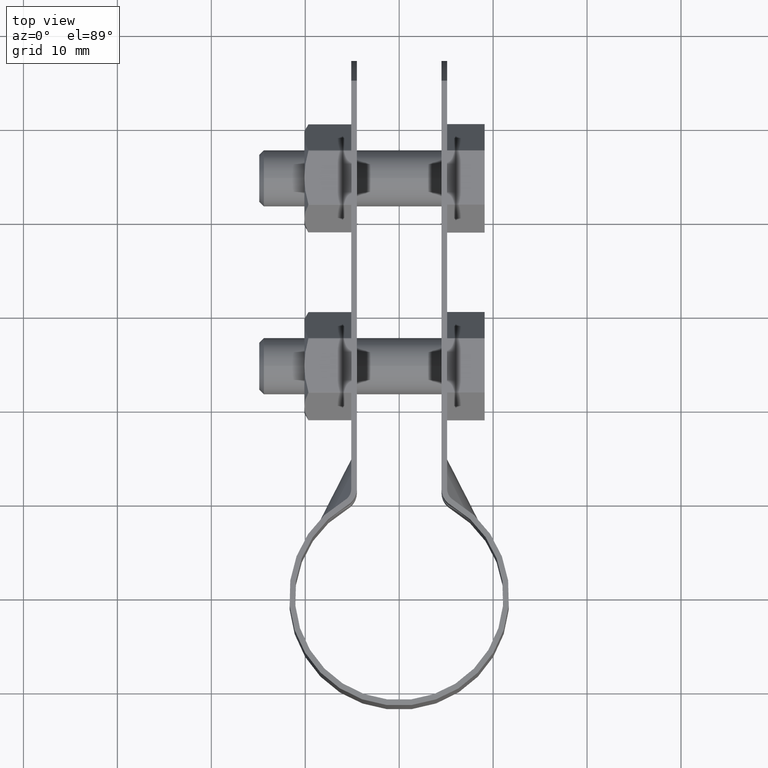
[diagram: clean part render]
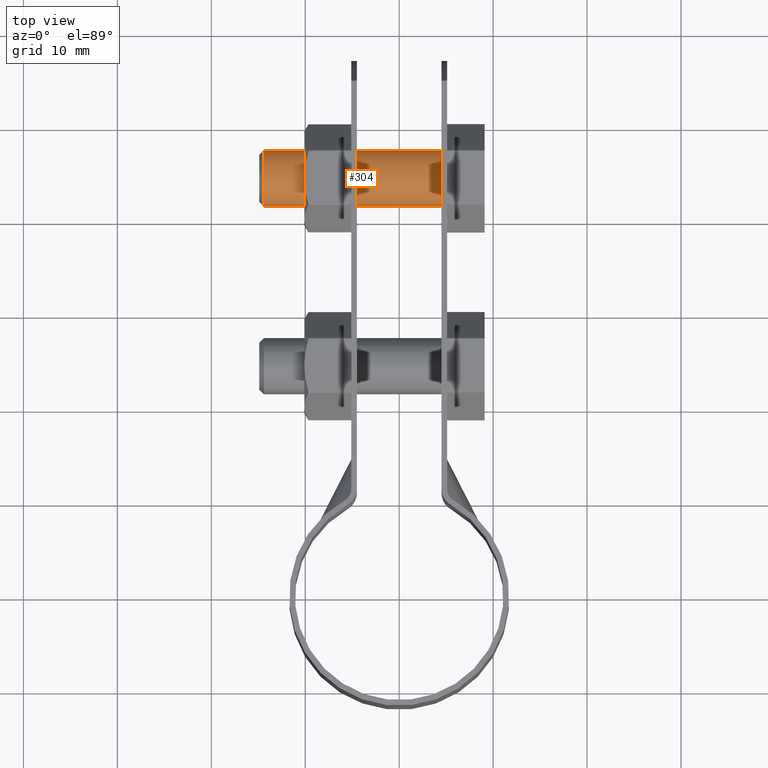
[diagram: same view with one face highlighted and labeled with its STEP entity id]
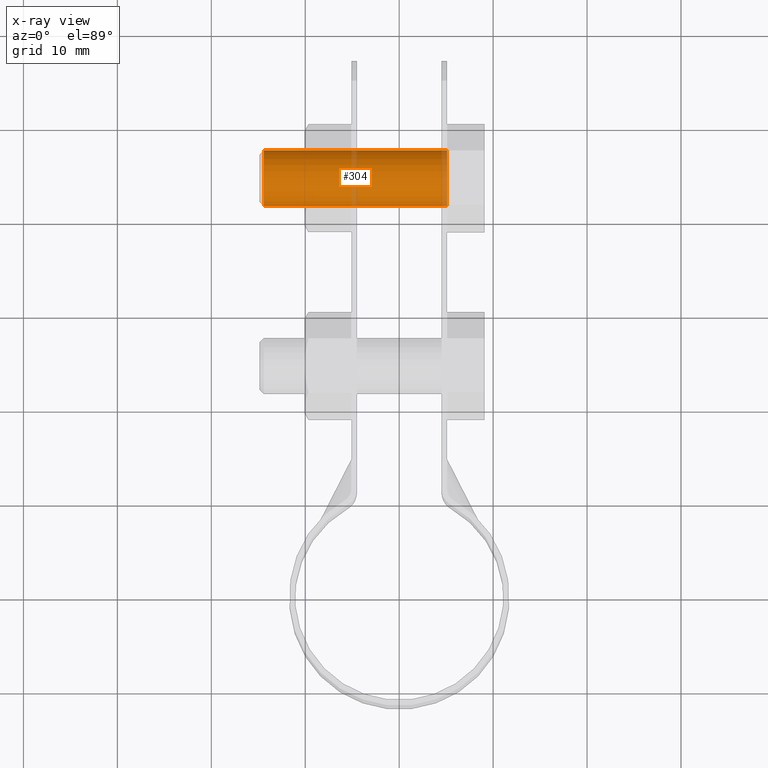
[diagram: x-ray of the same camera — body ghosted, the highlighted face saturated]
A machine part, top view. The second image highlights one B-rep face of the part: STEP entity #304.
The next image is the same camera in x-ray: the body ghosted, the highlighted face saturated — about 6% of this face is hidden behind the body in this view.
In plain terms, the highlighted cylindrical surface (bore or boss wall) has radius 3 mm, axis along (1, -0, 0).
Its self-contained STEP definition (entity closure, byte-faithful):
#304 = ADVANCED_FACE( '', ( #457, #458 ), #459, .T. );
#457 = FACE_OUTER_BOUND( '', #689, .T. );
#458 = FACE_OUTER_BOUND( '', #690, .T. );
#459 = CYLINDRICAL_SURFACE( '', #691, 3.00000000000000 );
#689 = EDGE_LOOP( '', ( #1144 ) );
#690 = EDGE_LOOP( '', ( #1145 ) );
#691 = AXIS2_PLACEMENT_3D( '', #1146, #1147, #1148 );
#1144 = ORIENTED_EDGE( '', *, *, #1720, .T. );
#1145 = ORIENTED_EDGE( '', *, *, #1714, .F. );
#1146 = CARTESIAN_POINT( '', ( 13.5487843911358, 44.6578590263894, -8.67361737988404E-016 ) );
#1147 = DIRECTION( '', ( 1.00000000000000, -6.06692130572647E-017, 0.000000000000000 ) );
#1148 = DIRECTION( '', ( 0.000000000000000, 0.000000000000000, 1.00000000000000 ) );
#1714 = EDGE_CURVE( '', #2022, #2022, #2023, .F. );
#1720 = EDGE_CURVE( '', #2032, #2032, #2033, .T. );
#2022 = VERTEX_POINT( '', #2556 );
#2023 = CIRCLE( '', #2557, 3.00000000000000 );
#2032 = VERTEX_POINT( '', #2571 );
#2033 = CIRCLE( '', #2572, 3.00000000000000 );
#2556 = CARTESIAN_POINT( '', ( 5.10000000000000, 44.6578590263894, 3.00000000000000 ) );
#2557 = AXIS2_PLACEMENT_3D( '', #3156, #3157, #3158 );
#2571 = CARTESIAN_POINT( '', ( -14.4000000000000, 44.6578590263894, -3.00000000000000 ) );
#2572 = AXIS2_PLACEMENT_3D( '', #3164, #3165, #3166 );
#3156 = CARTESIAN_POINT( '', ( 5.10000000000000, 44.6578590263894, -8.67361737988404E-016 ) );
#3157 = DIRECTION( '', ( -1.00000000000000, 6.06692130572647E-017, 0.000000000000000 ) );
#3158 = DIRECTION( '', ( 0.000000000000000, 0.000000000000000, 1.00000000000000 ) );
#3164 = CARTESIAN_POINT( '', ( -14.4000000000000, 44.6578590263894, -8.67361737988404E-016 ) );
#3165 = DIRECTION( '', ( 1.00000000000000, -6.06692130572647E-017, 0.000000000000000 ) );
#3166 = DIRECTION( '', ( 0.000000000000000, 0.000000000000000, -1.00000000000000 ) );